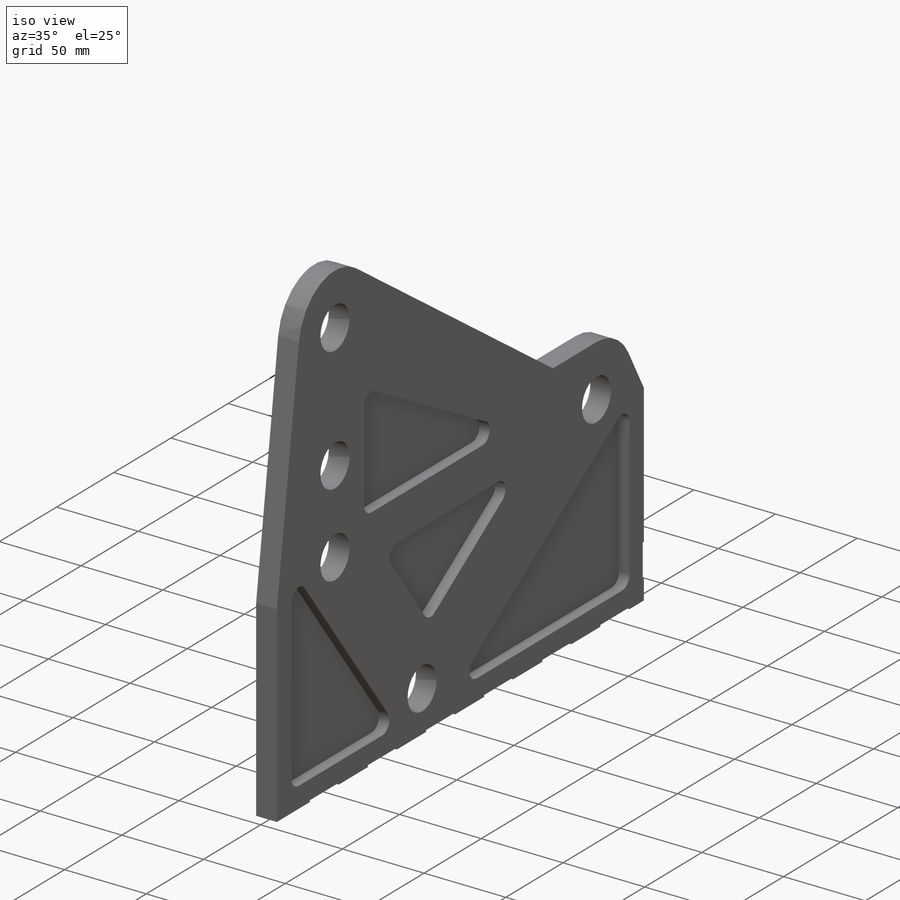
[diagram: iso view]
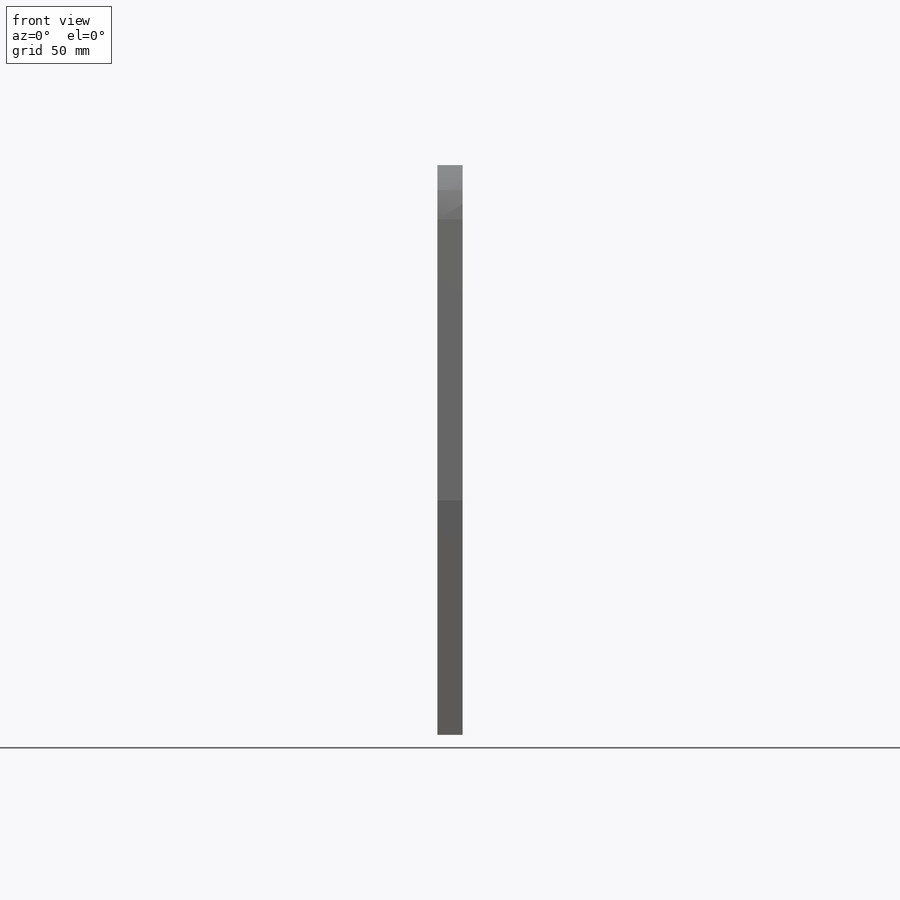
[diagram: front view]
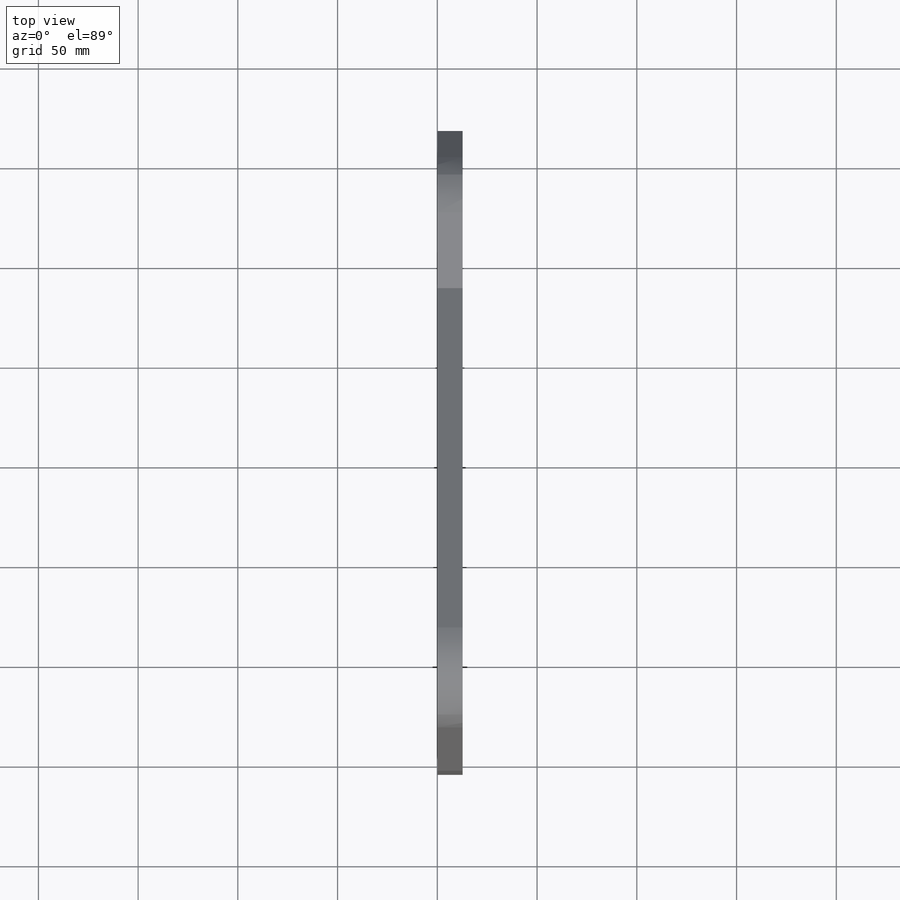
[diagram: top view]
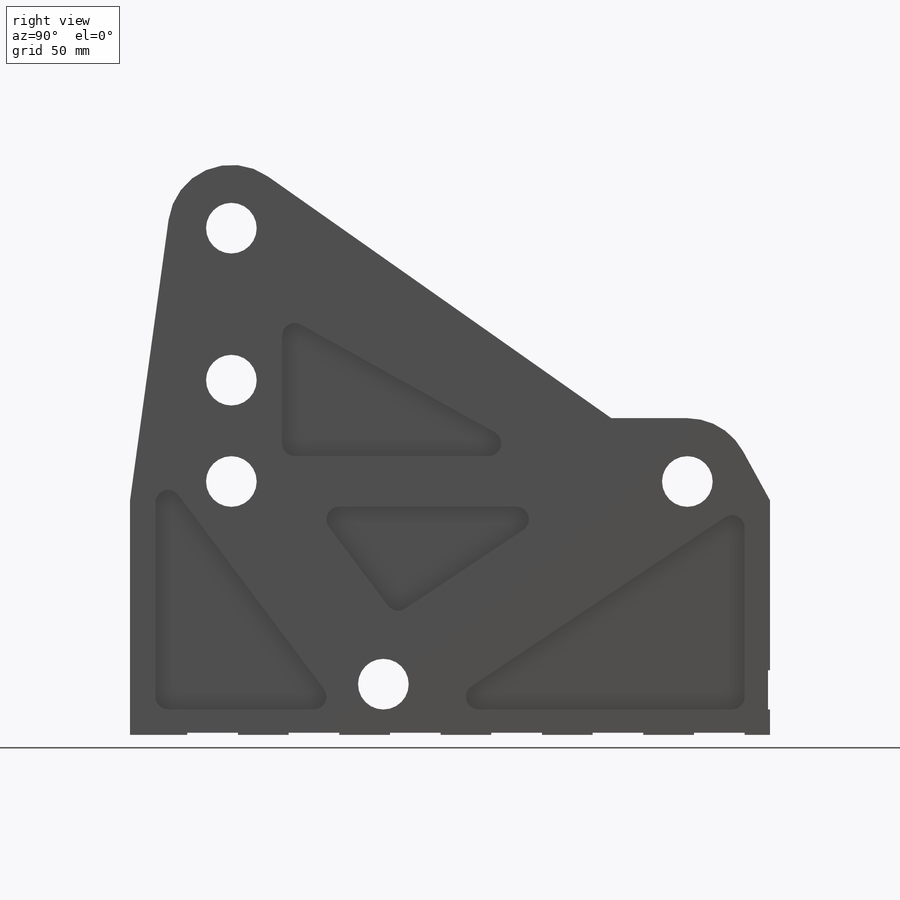
[diagram: right view]
SOLIDWORKS PART (.sldprt)
format: sldprt  version: not decoded by parser v0  size: 488,960 bytes
history: native  units: mm
features: sketch x10, cut_extrude x6, extrude x4, material x1 (+13 scaffold rows collapsed)
feature tree (34):
  scaffold x13  (default folders/planes/origin — collapsed)
  material  "7075-T6 (SN)"
  sketch  "Sketch1"  dims[c1.D1=~9.285877mm c1.D3=~12.882042mm c1.D4=15.875mm c1.D5=101.6mm c1.D9=50.8mm c1.D10=67.31mm c1.D11=79.502mm c1.D12=46.736mm c2.D1=38.1mm c2.D2=50.8mm c2.D3=71.755mm c2.D6=254.0mm c2.D7=38.1mm c2.D8=38.1mm c3.D1=558.8mm c3.D2=88.9mm]
  extrude  "Boss-Extrude1"  Depth=12.7mm
  sketch  "Sketch2"  dims[c1.D1=25.4mm c1.D2=63.5mm c1.D3=127.0mm c1.D4=127.0mm c1.D5=76.2mm c1.D6=254.0mm c1.D7=196.85mm c2.D5=~79.056862mm c3.D5=45.0deg c4.D5=~58.544107mm c5.D5=45.0deg c6.D5=228.6mm]
  extrude  "Boss-Extrude2"  Depth=12.7mm
  sketch  "Sketch3"  dims[c1.D1=~58.544107mm c2.D1=45.0deg]
  extrude  "Boss-Extrude3"  Depth=12.7mm
  sketch  "Sketch4"
  cut_extrude  "Cut-Extrude1"  [1 undecoded]
  sketch  "Sketch5"  dims[D1=50.8mm D2=~117.554935mm]
  cut_extrude  "Cut-Extrude2"  [1 undecoded]
  sketch  "Sketch6"  dims[c1.D1=25.4mm c1.D3=25.4mm c1.D4=25.4mm c1.D5=63.5mm c1.D2=76.2mm c2.D3=50.8mm c2.D4=25.4mm c2.D6=190.5mm]
  extrude  "Boss-Extrude4"  Depth=12.7mm
  sketch  "Sketch7"  dims[D1=25.4mm D2=25.4mm D3=127.0mm]
  cut_extrude  "Cut-Extrude3"  [1 undecoded]
  sketch  "Sketch8"  dims[c1.D5=6.35mm c1.D7=6.35mm c1.D1=25.4mm c1.D2=25.4mm c1.D3=12.7mm c1.D4=12.7mm c1.D6=12.7mm c2.D7=12.7mm]
  cut_extrude  "Cut-Extrude4"  Depth=6.35mm
  sketch  "Sketch9"  dims[D1=12.7mm D2=25.4mm D3=1.016mm D4=6.0]
  cut_extrude  "Cut-Extrude5"  [1 undecoded]
  sketch  "Sketch10"  dims[D1=19.685mm D2=1.016mm D3=12.7mm]
  cut_extrude  "Cut-Extrude6"  [1 undecoded]
decode coverage: 14 of 20 modeling features carry decoded parameters
note: ~ marks probable driven/reference dimensions
note: 5 parameter values undecoded
summary: no parameter record found for 5 features
note: suppression state not decoded; provenance and decode notes live in map.json
